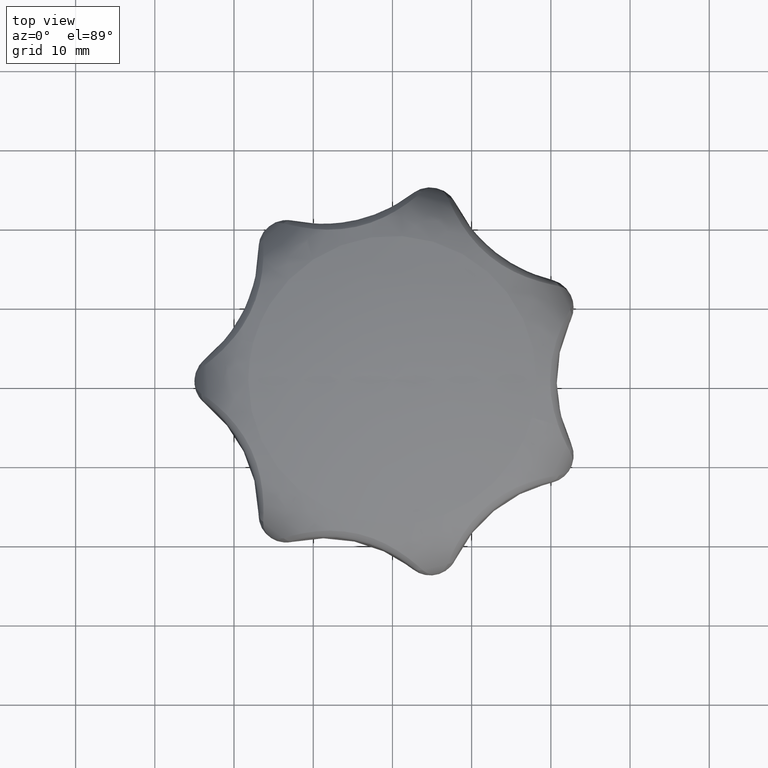
[diagram: clean part render]
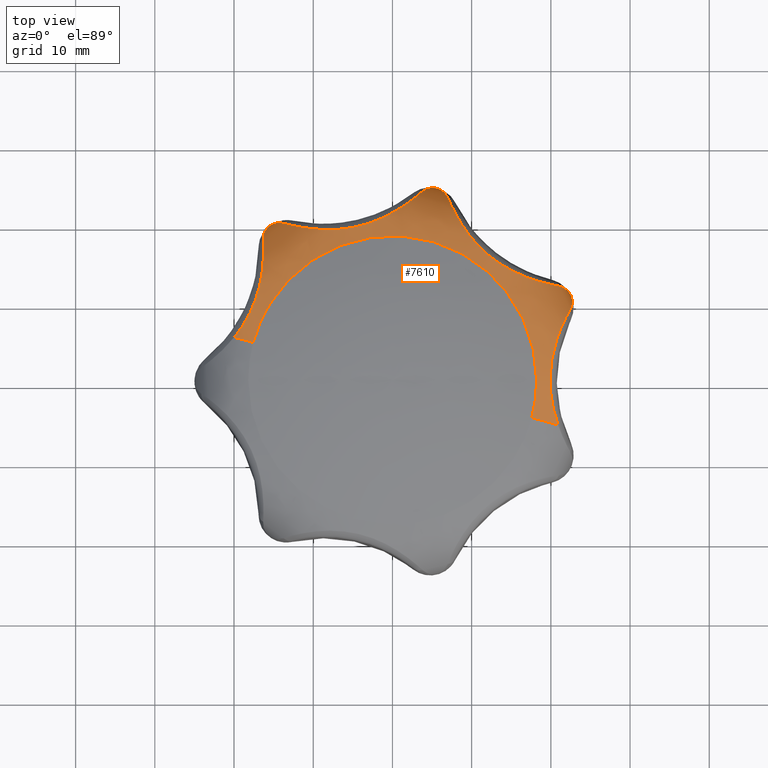
[diagram: same view with one face highlighted and labeled with its STEP entity id]
A machine part, top view. The second image highlights one B-rep face of the part: STEP entity #7610.
In plain terms, the highlighted face is a freeform B-spline surface patch.
Its self-contained STEP definition (entity closure, byte-faithful):
#2683=CARTESIAN_POINT('',(-15.587244335688350,19.545787396947251,21.138975563360098));
#2684=VERTEX_POINT('',#2683);
#2765=CARTESIAN_POINT('',(5.563023274532569,24.373197756430201,21.138975563360098));
#2766=VERTEX_POINT('',#2765);
#3021=CARTESIAN_POINT('',(18.211198396118341,0.0,29.863114584089448));
#3022=VERTEX_POINT('',#3021);
#3043=CARTESIAN_POINT('',(17.580756814501768,-4.750236491730867,29.863114550777400));
#3044=VERTEX_POINT('',#3043);
#3072=CARTESIAN_POINT('',(17.580756814501768,-4.750236491730867,29.863114550777400));
#3073=CARTESIAN_POINT('',(17.828915368958061,-3.832022789808897,29.863114557332040));
#3074=CARTESIAN_POINT('',(18.125256296561648,-2.252730889695959,29.863114568486449));
#3075=CARTESIAN_POINT('',(18.211206972087901,-0.650787820530269,29.863114579604630));
#3076=CARTESIAN_POINT('',(18.211198396118341,0.0,29.863114584089448));
#3077=B_SPLINE_CURVE_WITH_KNOTS('',3,(#3072,#3073,#3074,#3075,#3076),.UNSPECIFIED.,.F.,.U.,(4,1,4),(4.380096E-010,2.853464919490515,4.805835677326216),.UNSPECIFIED.);
#3078=EDGE_CURVE('',#3044,#3022,#3077,.T.);
#3119=CARTESIAN_POINT('',(-17.580756814447270,4.750236491716143,29.863114550791721));
#3120=VERTEX_POINT('',#3119);
#3121=CARTESIAN_POINT('',(18.211198396118341,0.0,29.863114584089448));
#3122=CARTESIAN_POINT('',(18.211246268773522,0.887088973013643,29.863114583981929));
#3123=CARTESIAN_POINT('',(18.098767704938190,2.422409204360849,29.863114583692500));
#3124=CARTESIAN_POINT('',(17.563883481132638,5.068117704136888,29.863114582882549));
#3125=CARTESIAN_POINT('',(16.615917574800569,7.677496355093007,29.863114581699069));
#3126=CARTESIAN_POINT('',(15.078121228372421,10.346383472175450,29.863114579969299));
#3127=CARTESIAN_POINT('',(13.463933602955800,12.342147537510369,29.863114578251221));
#3128=CARTESIAN_POINT('',(11.901622556712059,13.822909016170939,29.863114576643301));
#3129=CARTESIAN_POINT('',(10.337075011271949,15.037862909114169,29.863114575065548));
#3130=CARTESIAN_POINT('',(8.239328925134714,16.326067259157021,29.863114572991432));
#3131=CARTESIAN_POINT('',(5.802341698422543,17.337247911315089,29.863114570640629));
#3132=CARTESIAN_POINT('',(3.379733048755765,17.933911368657739,29.863114568353801));
#3133=CARTESIAN_POINT('',(0.974066417538719,18.246418702300382,29.863114566116650));
#3134=CARTESIAN_POINT('',(-1.354634945421342,18.219909023606359,29.863114563990582));
#3135=CARTESIAN_POINT('',(-3.922206024335743,17.834252978931438,29.863114561690139));
#3136=CARTESIAN_POINT('',(-6.194125730956456,17.191931919480510,29.863114559691059));
#3137=CARTESIAN_POINT('',(-8.412174839684084,16.204395470808571,29.863114557784449));
#3138=CARTESIAN_POINT('',(-10.255929231670899,15.092874234653671,29.863114556231960));
#3139=CARTESIAN_POINT('',(-11.722365752489869,13.973166371329960,29.863114555028289));
#3140=CARTESIAN_POINT('',(-13.124652042923390,12.672911726011060,29.863114553903639));
#3141=CARTESIAN_POINT('',(-14.610942704587190,10.975509200865559,29.863114552751270));
#3142=CARTESIAN_POINT('',(-16.325907473141250,8.334035043916963,29.863114551503770));
#3143=CARTESIAN_POINT('',(-17.216165019022519,6.100772038438054,29.863114550960979));
#3144=CARTESIAN_POINT('',(-17.580756814447270,4.750236491716143,29.863114550791721));
#3145=B_SPLINE_CURVE_WITH_KNOTS('',3,(#3121,#3122,#3123,#3124,#3125,#3126,#3127,#3128,#3129,#3130,#3131,#3132,#3133,#3134,#3135,#3136,#3137,#3138,#3139,#3140,#3141,#3142,#3143,#3144),.UNSPECIFIED.,.F.,.U.,(4,1,1,1,1,1,1,1,1,1,1,1,1,1,1,1,1,1,1,1,1,4),(0.000000086531564,2.661262084402338,4.606027550086118,8.086135211401185,10.952120822601961,13.818102267037061,15.762871701757989,17.400576791528749,19.754778761703179,23.132561751846389,25.282021696390711,27.226729431589611,30.399812852384191,32.242202319795432,35.005847613275790,37.462399429621563,39.509530349670740,41.454308354472317,42.989653008291093,45.241483140817813,48.209849631855150,52.406421604238112),.UNSPECIFIED.);
#3146=EDGE_CURVE('',#3022,#3120,#3145,.T.);
#3185=CARTESIAN_POINT('',(6.979022579631600,23.130869970859099,24.933901547163000));
#3186=VERTEX_POINT('',#3185);
#3197=CARTESIAN_POINT('',(6.979022579631600,23.130869970859099,24.933901547163000));
#3198=CARTESIAN_POINT('',(6.909432498495636,23.301456104037630,24.625929795197870));
#3199=CARTESIAN_POINT('',(6.823284281170104,23.454712647212659,24.316818453214619));
#3200=CARTESIAN_POINT('',(6.625758653470102,23.728494397587038,23.694377153265211));
#3201=CARTESIAN_POINT('',(6.514315190052402,23.849000387741871,23.381062231544419));
#3202=CARTESIAN_POINT('',(6.331965434033092,24.005224823865579,22.906654012313432));
#3203=CARTESIAN_POINT('',(6.268635963520103,24.053197823294010,22.747778925636581));
#3204=CARTESIAN_POINT('',(6.137382306100458,24.140798615800470,22.428325067304620));
#3205=CARTESIAN_POINT('',(6.069326648534801,24.180487025437721,22.267448918424979));
#3206=CARTESIAN_POINT('',(5.929800506151916,24.250923951754562,21.945446703156140));
#3207=CARTESIAN_POINT('',(5.858359976096663,24.281682699383929,21.784370214593629));
#3208=CARTESIAN_POINT('',(5.749060137970578,24.321092216646019,21.542467511105450));
#3209=CARTESIAN_POINT('',(5.712270016169256,24.333106447814220,21.461785275783001));
#3210=CARTESIAN_POINT('',(5.656593025503534,24.349432185031031,21.340668351058529));
#3211=CARTESIAN_POINT('',(5.637954926859542,24.354590538650861,21.300286388605649));
#3212=CARTESIAN_POINT('',(5.600538292868120,24.364335556182450,21.219527501643501));
#3213=CARTESIAN_POINT('',(5.581559635789891,24.368966953645970,21.178887050275360));
#3214=CARTESIAN_POINT('',(5.563023274532569,24.373197756430201,21.138975563360098));
#3215=B_SPLINE_CURVE_WITH_KNOTS('',3,(#3197,#3198,#3199,#3200,#3201,#3202,#3203,#3204,#3205,#3206,#3207,#3208,#3209,#3210,#3211,#3212,#3213,#3214),.UNSPECIFIED.,.F.,.U.,(4,2,2,2,2,2,2,2,4),(0.0,0.250000000000001,0.500000000000003,0.625000000000002,0.750000000000001,0.875000000000000,0.937500000000000,0.968750000000000,1.0),.UNSPECIFIED.);
#3216=EDGE_CURVE('',#3186,#2766,#3215,.T.);
#3537=CARTESIAN_POINT('',(20.997952736183251,11.951146853061561,24.933900281562600));
#3538=VERTEX_POINT('',#3537);
#3606=CARTESIAN_POINT('',(20.997952736183251,11.951146853061561,24.933900281562600));
#3607=CARTESIAN_POINT('',(20.766383550143878,11.989214992864980,25.326194941423399));
#3608=CARTESIAN_POINT('',(20.503884433524419,12.035825238798269,25.690778648461659));
#3609=CARTESIAN_POINT('',(20.068325554020760,12.122698469293480,26.199263772483619));
#3610=CARTESIAN_POINT('',(19.916134873542180,12.154498036122170,26.362327185265681));
#3611=CARTESIAN_POINT('',(19.677662792097831,12.207134292864531,26.597430733513360));
#3612=CARTESIAN_POINT('',(19.596473036294238,12.225503706747149,26.674215276606240));
#3613=CARTESIAN_POINT('',(19.430734245800188,12.264018217656810,26.824628724440291));
#3614=CARTESIAN_POINT('',(19.346052154945419,12.284195983702521,26.898367958835610));
#3615=CARTESIAN_POINT('',(18.915826287561359,12.389501855894229,27.257930413781409));
#3616=CARTESIAN_POINT('',(18.554799660745061,12.486619006949400,27.512584783550039));
#3617=CARTESIAN_POINT('',(17.993141644441419,12.655592957199779,27.851393239480839));
#3618=CARTESIAN_POINT('',(17.802553809532348,12.715809091863070,27.957105157119742));
#3619=CARTESIAN_POINT('',(17.512167982552480,12.812556573320810,28.105433330940151));
#3620=CARTESIAN_POINT('',(17.414621595850949,12.845876949555640,28.153168431169970));
#3621=CARTESIAN_POINT('',(17.218114022538309,12.914766456795620,28.245312294754282));
#3622=CARTESIAN_POINT('',(17.119106820813439,12.950356915612520,28.289731861150749));
#3623=CARTESIAN_POINT('',(16.624718404416900,13.132704506272500,28.502105481756281));
#3624=CARTESIAN_POINT('',(16.228174229046960,13.293702906507040,28.642580826916241));
#3625=CARTESIAN_POINT('',(15.437776774878319,13.649299128052361,28.876058087580919));
#3626=CARTESIAN_POINT('',(15.043917064453741,13.843896053837881,28.969038429797980));
#3627=CARTESIAN_POINT('',(14.458139340941070,14.163942669846239,29.078634860027229));
#3628=CARTESIAN_POINT('',(14.263710194139239,14.275321293625760,29.110161538165940));
#3629=CARTESIAN_POINT('',(13.973635395956061,14.449845931023820,29.150405321591538));
#3630=CARTESIAN_POINT('',(13.877214804516230,14.509264354704960,29.162637348108071));
#3631=CARTESIAN_POINT('',(13.686235000495669,14.629818658036291,29.184672697375770));
#3632=CARTESIAN_POINT('',(13.591510008630239,14.691052759542750,29.194500238952401));
#3633=CARTESIAN_POINT('',(13.121726760096820,15.002029729072399,29.237942077744691));
#3634=CARTESIAN_POINT('',(12.394691805939161,15.530393820038601,29.271443801038931));
#3635=CARTESIAN_POINT('',(11.717305575729990,16.120881083323191,29.238694157407249));
#3636=CARTESIAN_POINT('',(11.309319728824599,16.509178922617011,29.195774822729518));
#3637=CARTESIAN_POINT('',(11.228490603639299,16.587799412011471,29.186054440427242));
#3638=CARTESIAN_POINT('',(11.068361408527760,16.746953338247451,29.164240202753572));
#3639=CARTESIAN_POINT('',(10.988987181315521,16.827564261102879,29.152133333143581));
#3640=CARTESIAN_POINT('',(10.753705169140860,17.071667106054480,29.112163905594151));
#3641=CARTESIAN_POINT('',(10.600878741976439,17.237164386266681,29.080714359354541));
#3642=CARTESIAN_POINT('',(10.377477522271610,17.489240733400969,29.025693313034541));
#3643=CARTESIAN_POINT('',(10.303923537538720,17.573977409280641,29.006023071524300));
#3644=CARTESIAN_POINT('',(10.159277028523441,17.744018467542190,28.964095221294770));
#3645=CARTESIAN_POINT('',(10.088131083590360,17.829380164625899,28.941827070047999));
#3646=CARTESIAN_POINT('',(9.878132021037775,18.086364393553819,28.870964119767368));
#3647=CARTESIAN_POINT('',(9.742715817957269,18.258886939150301,28.818316499403739));
#3648=CARTESIAN_POINT('',(9.349541363165251,18.779026281534911,28.642777683812561));
#3649=CARTESIAN_POINT('',(9.104829685116652,19.129233998640039,28.502390668295611));
#3650=CARTESIAN_POINT('',(8.761685406451095,19.655317724679239,28.249553063523450));
#3651=CARTESIAN_POINT('',(8.651298127668630,19.830803577546352,28.158207745215702));
#3652=CARTESIAN_POINT('',(8.491498609880487,20.093612165315449,28.009425906355581));
#3653=CARTESIAN_POINT('',(8.439296053984879,20.180985985136740,27.957949697560860));
#3654=CARTESIAN_POINT('',(8.337593892494910,20.354068264581720,27.851783191587590));
#3655=CARTESIAN_POINT('',(8.287997099428122,20.439935760668138,27.797004044855839));
#3656=CARTESIAN_POINT('',(8.046057939810142,20.865640606189441,27.514447948215299));
#3657=CARTESIAN_POINT('',(7.871781766052185,21.194619242247910,27.260785372063591));
#3658=CARTESIAN_POINT('',(7.635766145690689,21.665296602830640,26.834403293886052));
#3659=CARTESIAN_POINT('',(7.561340769847483,21.818383784776369,26.684610238246560));
#3660=CARTESIAN_POINT('',(7.455756749330162,22.041507050871690,26.447625849643899));
#3661=CARTESIAN_POINT('',(7.421683158675329,22.114563392525760,26.366815027715891));
#3662=CARTESIAN_POINT('',(7.356011157578441,22.257236536769181,26.202345979287131));
#3663=CARTESIAN_POINT('',(7.324358916238942,22.326966893425450,26.118568177804050));
#3664=CARTESIAN_POINT('',(7.171747884994042,22.667424779675049,25.691930181348980));
#3665=CARTESIAN_POINT('',(7.067612669439641,22.913706988024359,25.325962473927710));
#3666=CARTESIAN_POINT('',(6.979022579631610,23.130869970859099,24.933901547163000));
#3667=B_SPLINE_CURVE_WITH_KNOTS('',3,(#3606,#3607,#3608,#3609,#3610,#3611,#3612,#3613,#3614,#3615,#3616,#3617,#3618,#3619,#3620,#3621,#3622,#3623,#3624,#3625,#3626,#3627,#3628,#3629,#3630,#3631,#3632,#3633,#3634,#3635,#3636,#3637,#3638,#3639,#3640,#3641,#3642,#3643,#3644,#3645,#3646,#3647,#3648,#3649,#3650,#3651,#3652,#3653,#3654,#3655,#3656,#3657,#3658,#3659,#3660,#3661,#3662,#3663,#3664,#3665,#3666),.UNSPECIFIED.,.F.,.U.,(4,2,2,2,2,2,2,2,2,2,2,2,2,2,1,2,2,2,2,2,2,2,2,2,2,2,2,2,2,2,4),(0.0,0.062500000000001,0.093750000000001,0.109375000000002,0.125000000000002,0.187500000000004,0.218750000000005,0.234375000000005,0.250000000000005,0.312500000000004,0.375000000000004,0.406250000000004,0.421875000000004,0.437500000000004,0.500000000000004,0.562500000000004,0.578125000000004,0.593750000000004,0.625000000000005,0.640625000000005,0.656250000000004,0.687500000000004,0.750000000000004,0.781250000000004,0.796875000000004,0.812500000000004,0.875000000000002,0.906250000000001,0.921875000000001,0.937500000000000,1.0),.UNSPECIFIED.);
#3668=EDGE_CURVE('',#3538,#3186,#3667,.T.);
#3711=CARTESIAN_POINT('',(22.524221752267799,10.847094021947340,21.138975563360098));
#3712=VERTEX_POINT('',#3711);
#3713=CARTESIAN_POINT('',(22.524221752267799,10.847094021947340,21.138975563360098));
#3714=CARTESIAN_POINT('',(22.520010772467739,10.855837553576160,21.158835673111621));
#3715=CARTESIAN_POINT('',(22.515792306116619,10.864430384355330,21.179115534903080));
#3716=CARTESIAN_POINT('',(22.507154157545951,10.881692028463259,21.219510860829359));
#3717=CARTESIAN_POINT('',(22.502764895928109,10.890299083363510,21.239703018341171));
#3718=CARTESIAN_POINT('',(22.489400168984570,10.916020668322281,21.300277983059399));
#3719=CARTESIAN_POINT('',(22.480224660473020,10.933041804502571,21.340660900783970));
#3720=CARTESIAN_POINT('',(22.451921594546949,10.983684560021620,21.461780701375378));
#3721=CARTESIAN_POINT('',(22.432022458975290,11.016877944939861,21.542463411462109));
#3722=CARTESIAN_POINT('',(22.369280859324409,11.114665219780809,21.784367539558541));
#3723=CARTESIAN_POINT('',(22.323396521118909,11.177469657210150,21.945444255765299));
#3724=CARTESIAN_POINT('',(22.223678587316559,11.297822966276660,22.267446915957699));
#3725=CARTESIAN_POINT('',(22.169841590106319,11.355340555552459,22.428323160689899));
#3726=CARTESIAN_POINT('',(22.055230692042880,11.463809975171189,22.747777177183199));
#3727=CARTESIAN_POINT('',(21.994368435313412,11.514876501097030,22.906652313737830));
#3728=CARTESIAN_POINT('',(21.801484475436229,11.657890804508501,23.381060649072971));
#3729=CARTESIAN_POINT('',(21.659201431853020,11.739724913654531,23.694375603434299));
#3730=CARTESIAN_POINT('',(21.348330581537031,11.871375798040861,24.316816948170001));
#3731=CARTESIAN_POINT('',(21.179746808692030,11.921261252829220,24.625928299308210));
#3732=CARTESIAN_POINT('',(20.997952736183251,11.951146853061561,24.933900281562600));
#3733=B_SPLINE_CURVE_WITH_KNOTS('',3,(#3713,#3714,#3715,#3716,#3717,#3718,#3719,#3720,#3721,#3722,#3723,#3724,#3725,#3726,#3727,#3728,#3729,#3730,#3731,#3732),.UNSPECIFIED.,.F.,.U.,(4,2,2,2,2,2,2,2,2,4),(0.0,0.015625000000000,0.031250000000000,0.062500000000000,0.125000000000001,0.250000000000001,0.375000000000000,0.500000000000000,0.750000000000000,1.0),.UNSPECIFIED.);
#3734=EDGE_CURVE('',#3712,#3538,#3733,.T.);
#3799=CARTESIAN_POINT('',(-13.733092844730340,19.878280736296301,24.933902333208199));
#3800=VERTEX_POINT('',#3799);
#3811=CARTESIAN_POINT('',(-13.733092844730340,19.878280736296301,24.933902333208199));
#3812=CARTESIAN_POINT('',(-13.909850542861999,19.930232361163160,24.625930264046790));
#3813=CARTESIAN_POINT('',(-14.083383926783821,19.958432862553860,24.316818872976871));
#3814=CARTESIAN_POINT('',(-14.420590454886250,19.974701201299549,23.694377505598791));
#3815=CARTESIAN_POINT('',(-14.584289762630240,19.962705417468481,23.381062552986560));
#3816=CARTESIAN_POINT('',(-14.820124303661800,19.917542886733891,22.906654308600729));
#3817=CARTESIAN_POINT('',(-14.897116439606840,19.897940550011668,22.747779217064242));
#3818=CARTESIAN_POINT('',(-15.047440962392839,19.849940397994779,22.428325368122991));
#3819=CARTESIAN_POINT('',(-15.120902709178770,19.821477590856180,22.267449229124690));
#3820=CARTESIAN_POINT('',(-15.262965932764599,19.756308130394299,21.945447121393489));
#3821=CARTESIAN_POINT('',(-15.331556675409381,19.719631321887942,21.784370688241129));
#3822=CARTESIAN_POINT('',(-15.430516424477711,19.658748041976772,21.542468432885741));
#3823=CARTESIAN_POINT('',(-15.462848064803829,19.637474898020798,21.461786346842221));
#3824=CARTESIAN_POINT('',(-15.510327683435920,19.604122516771731,21.340670375726049));
#3825=CARTESIAN_POINT('',(-15.525981846057880,19.592766416652900,21.300288729884201));
#3826=CARTESIAN_POINT('',(-15.549195942550110,19.575380667323699,21.239721514504829));
#3827=CARTESIAN_POINT('',(-15.556889217302681,19.569527038572360,21.219531932594329));
#3828=CARTESIAN_POINT('',(-15.572195457450841,19.557695680753209,21.179157384501440));
#3829=CARTESIAN_POINT('',(-15.579864758799079,19.551672413948751,21.158963419317310));
#3830=CARTESIAN_POINT('',(-15.587244335688350,19.545787396947251,21.138975563360098));
#3831=B_SPLINE_CURVE_WITH_KNOTS('',3,(#3811,#3812,#3813,#3814,#3815,#3816,#3817,#3818,#3819,#3820,#3821,#3822,#3823,#3824,#3825,#3826,#3827,#3828,#3829,#3830),.UNSPECIFIED.,.F.,.U.,(4,2,2,2,2,2,2,2,2,4),(0.0,0.249999999999999,0.499999999999998,0.624999999999998,0.749999999999999,0.875000000000000,0.937499999999999,0.968749999999999,0.984375000000000,1.0),.UNSPECIFIED.);
#3832=EDGE_CURVE('',#3800,#2684,#3831,.T.);
#4153=CARTESIAN_POINT('',(3.748227333012965,23.868278361227251,24.933900733064402));
#4154=VERTEX_POINT('',#4153);
#4166=CARTESIAN_POINT('',(3.748227333012965,23.868278361227251,24.933900733064402));
#4167=CARTESIAN_POINT('',(3.574083709226489,23.710965267003271,25.326195484764089));
#4168=CARTESIAN_POINT('',(3.373976792279787,23.534796171263832,25.690779217971439));
#4169=CARTESIAN_POINT('',(3.034490015610307,23.248427070774419,26.199264331242240));
#4170=CARTESIAN_POINT('',(2.914738765841767,23.149266301639120,26.362327739995621));
#4171=CARTESIAN_POINT('',(2.724901157472717,22.995639476378368,26.597431281575691));
#4172=CARTESIAN_POINT('',(2.659918381685292,22.943615907021929,26.674215822342020));
#4173=CARTESIAN_POINT('',(2.526470069067702,22.838049498837041,26.824629265323331));
#4174=CARTESIAN_POINT('',(2.457896031427659,22.784423001324260,26.898368497161940));
#4175=CARTESIAN_POINT('',(2.107323120118795,22.513715990135129,27.257930939247501));
#4176=CARTESIAN_POINT('',(1.806297435290394,22.292005545635771,27.512585297733260));
#4177=CARTESIAN_POINT('',(1.324000209326038,21.958237141083639,27.851393735943262));
#4178=CARTESIAN_POINT('',(1.158091759407010,21.846773711283209,27.957105647544669));
#4179=CARTESIAN_POINT('',(0.901398918191055,21.680061989137251,28.105433812224231));
#4180=CARTESIAN_POINT('',(0.814528817573960,21.624572065032840,28.153168909393202));
#4181=CARTESIAN_POINT('',(0.638148355875056,21.513888157597471,28.245312766849150));
#4182=CARTESIAN_POINT('',(0.548592629916637,21.458671495770790,28.289732330261732));
#4183=CARTESIAN_POINT('',(0.097781386195969,21.185834917689721,28.502105936200302));
#4184=CARTESIAN_POINT('',(-0.275333496802101,20.976185049382881,28.642581270099431));
#4185=CARTESIAN_POINT('',(-1.046154599650408,20.579938040075550,28.876058510438721));
#4186=CARTESIAN_POINT('',(-1.443864129404509,20.393335312280541,28.969038843592539));
#4187=CARTESIAN_POINT('',(-2.059313105966095,20.134901642158759,29.078635263031881));
#4188=CARTESIAN_POINT('',(-2.267617017003248,20.052334248779001,29.110161938043571));
#4189=CARTESIAN_POINT('',(-2.584924560465173,19.934358969445480,29.150405717645398));
#4190=CARTESIAN_POINT('',(-2.691497014071461,19.896021095993660,29.162637743143790));
#4191=CARTESIAN_POINT('',(-2.904824131592531,19.821871450212790,29.184673090652140));
#4192=CARTESIAN_POINT('',(-3.011758950151325,19.785991306735269,29.194500631493160));
#4193=CARTESIAN_POINT('',(-3.547795618556120,19.612590940396821,29.237942467368988));
#4194=CARTESIAN_POINT('',(-4.414186223358967,19.373601818559010,29.271443880974740));
#4195=CARTESIAN_POINT('',(-5.298191172508072,19.212162661393570,29.238694559082941));
#4196=CARTESIAN_POINT('',(-5.856149678252679,19.135286231510051,29.195775235865099));
#4197=CARTESIAN_POINT('',(-5.968013790344022,19.121110551540241,29.186054856058590));
#4198=CARTESIAN_POINT('',(-6.192284266615901,19.095147358551309,29.164240623796740));
#4199=CARTESIAN_POINT('',(-6.304797447765986,19.083350178800160,29.152133757152530));
#4200=CARTESIAN_POINT('',(-6.642340684091930,19.051594933721130,29.112164338590340));
#4201=CARTESIAN_POINT('',(-6.867017394679920,19.035296291721320,29.080714799067859));
#4202=CARTESIAN_POINT('',(-7.203387012638381,19.017801222714141,29.025693763929951));
#4203=CARTESIAN_POINT('',(-7.315496977337847,19.013126857123769,29.006023526241862));
#4204=CARTESIAN_POINT('',(-7.538626063588214,19.006056532589220,28.964095683628319));
#4205=CARTESIAN_POINT('',(-7.649723302017311,19.003654542858332,28.941827536324549));
#4206=CARTESIAN_POINT('',(-7.981573951939637,18.999697717540229,28.870964598267129));
#4207=CARTESIAN_POINT('',(-8.200888141272703,19.001391119636882,28.818316986576519));
#4208=CARTESIAN_POINT('',(-8.852689747437413,19.018296544728500,28.642778198528429));
#4209=CARTESIAN_POINT('',(-9.279068421437716,19.045324203171450,28.502391203369239));
#4210=CARTESIAN_POINT('',(-9.904324228572163,19.105051061234409,28.249553632429730));
#4211=CARTESIAN_POINT('',(-10.110349945417489,19.128160457994849,28.158208325956689));
#4212=CARTESIAN_POINT('',(-10.415455357574009,19.167082649189389,28.009426505820709));
#4213=CARTESIAN_POINT('',(-10.516314729870061,19.180745737190421,27.957950301855469));
#4214=CARTESIAN_POINT('',(-10.715046179770420,19.209146829656110,27.851783806332680));
#4215=CARTESIAN_POINT('',(-10.813103193321499,19.223908007612181,27.797004664851698));
#4216=CARTESIAN_POINT('',(-11.296779277954130,19.300175006284469,27.514448594606460));
#4217=CARTESIAN_POINT('',(-11.662644577865850,19.369035249121421,27.260786039979180));
#4218=CARTESIAN_POINT('',(-12.177788331647189,19.477973368391311,26.834403995464161));
#4219=CARTESIAN_POINT('',(-12.343880187272170,19.515233572492939,26.684610951283030));
#4220=CARTESIAN_POINT('',(-12.584155563124780,19.571799756372322,26.447626580418738));
#4221=CARTESIAN_POINT('',(-12.662517857659051,19.590709839945461,26.366815761394520));
#4222=CARTESIAN_POINT('',(-12.815010055072140,19.628320662929351,26.202346720572130));
#4223=CARTESIAN_POINT('',(-12.889262302188230,19.647050115707248,26.118568922774621));
#4224=CARTESIAN_POINT('',(-13.250594464485900,19.740006053541340,25.691930944170199));
#4225=CARTESIAN_POINT('',(-13.508072931310410,19.812144330562290,25.325963249167771));
#4226=CARTESIAN_POINT('',(-13.733092844730340,19.878280736296301,24.933902333208209));
#4227=B_SPLINE_CURVE_WITH_KNOTS('',3,(#4166,#4167,#4168,#4169,#4170,#4171,#4172,#4173,#4174,#4175,#4176,#4177,#4178,#4179,#4180,#4181,#4182,#4183,#4184,#4185,#4186,#4187,#4188,#4189,#4190,#4191,#4192,#4193,#4194,#4195,#4196,#4197,#4198,#4199,#4200,#4201,#4202,#4203,#4204,#4205,#4206,#4207,#4208,#4209,#4210,#4211,#4212,#4213,#4214,#4215,#4216,#4217,#4218,#4219,#4220,#4221,#4222,#4223,#4224,#4225,#4226),.UNSPECIFIED.,.F.,.U.,(4,2,2,2,2,2,2,2,2,2,2,2,2,2,1,2,2,2,2,2,2,2,2,2,2,2,2,2,2,2,4),(0.0,0.062500000000000,0.093750000000000,0.109375000000000,0.125000000000000,0.187500000000000,0.218750000000000,0.234375000000000,0.250000000000000,0.312499999999999,0.374999999999999,0.406249999999999,0.421874999999999,0.437499999999999,0.499999999999999,0.562499999999999,0.578124999999999,0.593749999999999,0.624999999999998,0.640624999999998,0.656249999999998,0.687499999999998,0.749999999999998,0.781249999999998,0.796874999999998,0.812499999999998,0.874999999999998,0.906249999999998,0.921874999999999,0.937499999999999,1.0),.UNSPECIFIED.);
#4228=EDGE_CURVE('',#4154,#3800,#4227,.T.);
#4259=CARTESIAN_POINT('',(5.563023274532569,24.373197756430201,21.138975563360098));
#4260=CARTESIAN_POINT('',(5.544486932736412,24.377428620527098,21.178887039088170));
#4261=CARTESIAN_POINT('',(5.525378270930028,24.381490404450631,21.219527478608480));
#4262=CARTESIAN_POINT('',(5.487438854525998,24.388944912824279,21.300286342432528));
#4263=CARTESIAN_POINT('',(5.468408387473145,24.392384163259720,21.340668293317929));
#4264=CARTESIAN_POINT('',(5.411161696426125,24.401832519251052,21.461785183339749));
#4265=CARTESIAN_POINT('',(5.372802173325291,24.406970704657169,21.542467395596240));
#4266=CARTESIAN_POINT('',(5.257227305886096,24.418887375116729,21.784370030055879));
#4267=CARTESIAN_POINT('',(5.179515914017951,24.422171585506149,21.945446472825239));
#4268=CARTESIAN_POINT('',(5.023245810715480,24.419248237828249,22.267448596760591));
#4269=CARTESIAN_POINT('',(4.944709648974973,24.413018465163280,22.428324699223730));
#4270=CARTESIAN_POINT('',(4.788445674172548,24.391041722854339,22.747778467055198));
#4271=CARTESIAN_POINT('',(4.710573109763429,24.375297182544649,22.906653509310871));
#4272=CARTESIAN_POINT('',(4.478498475620897,24.313662465166502,23.381061597475021));
#4273=CARTESIAN_POINT('',(4.325805832935681,24.253443865320250,23.694376434746211));
#4274=CARTESIAN_POINT('',(4.029052007510731,24.092478292040891,24.316817570268260));
#4275=CARTESIAN_POINT('',(3.884939651096366,23.991777291823372,24.625928832297380));
#4276=CARTESIAN_POINT('',(3.748227333012965,23.868278361227251,24.933900733064402));
#4277=B_SPLINE_CURVE_WITH_KNOTS('',3,(#4259,#4260,#4261,#4262,#4263,#4264,#4265,#4266,#4267,#4268,#4269,#4270,#4271,#4272,#4273,#4274,#4275,#4276),.UNSPECIFIED.,.F.,.U.,(4,2,2,2,2,2,2,2,4),(0.0,0.031250000000000,0.062499999999999,0.124999999999998,0.249999999999999,0.374999999999999,0.499999999999999,0.749999999999999,1.0),.UNSPECIFIED.);
#4278=EDGE_CURVE('',#2766,#4154,#4277,.T.);
#4663=CARTESIAN_POINT('',(-16.323989128505250,17.812109902086849,24.933902505942150));
#4664=VERTEX_POINT('',#4663);
#4676=CARTESIAN_POINT('',(-19.997321005162831,5.403180590295925,28.805412024847620));
#4677=VERTEX_POINT('',#4676);
#4703=CARTESIAN_POINT('',(-16.323989128505250,17.812109902086849,24.933902505942150));
#4704=CARTESIAN_POINT('',(-16.309573952089529,17.577875459642030,25.326197062047200));
#4705=CARTESIAN_POINT('',(-16.296604024242399,17.311585880320671,25.690780689340990));
#4706=CARTESIAN_POINT('',(-16.284378185001081,16.867616091336270,26.199265706368500));
#4707=CARTESIAN_POINT('',(-16.281514856431119,16.712165025837461,26.362329081328710));
#4708=CARTESIAN_POINT('',(-16.279766381502078,16.467959190973531,26.597432569938700));
#4709=CARTESIAN_POINT('',(-16.279608815646711,16.384717427490550,26.674217092668400));
#4710=CARTESIAN_POINT('',(-16.280277337704170,16.214563720282410,26.824630498867300));
#4711=CARTESIAN_POINT('',(-16.281105667763612,16.127514787420100,26.898369711473510));
#4712=CARTESIAN_POINT('',(-16.288037045064510,15.684642697666680,27.257932062305368));
#4713=CARTESIAN_POINT('',(-16.302383293014199,15.311057076176789,27.512586344720440));
#4714=CARTESIAN_POINT('',(-16.342140066866989,14.725880644057760,27.851394667569600));
#4715=CARTESIAN_POINT('',(-16.358436681918619,14.526671858421610,27.957106540506270));
#4716=CARTESIAN_POINT('',(-16.388141589513811,14.222038222017749,28.105434647277502));
#4717=CARTESIAN_POINT('',(-16.398920445826999,14.119523030211340,28.153169725158421));
#4718=CARTESIAN_POINT('',(-16.422355710112491,13.912612925108640,28.245313544134319));
#4719=CARTESIAN_POINT('',(-16.435022672023020,13.808168402953280,28.289733088937080));
#4720=CARTESIAN_POINT('',(-16.502786683020631,13.285599104691959,28.502106603223819));
#4721=CARTESIAN_POINT('',(-16.571509162493669,12.863171555830650,28.642581866505811));
#4722=CARTESIAN_POINT('',(-16.742309921219231,12.013463333666961,28.876058973215610));
#4723=CARTESIAN_POINT('',(-16.844385896245019,11.586176589277940,28.969039243366900));
#4724=CARTESIAN_POINT('',(-17.026060518344298,10.943868434128561,29.078635574623021));
#4725=CARTESIAN_POINT('',(-17.091382108922161,10.729529948843039,29.110162221281708));
#4726=CARTESIAN_POINT('',(-17.196983359772570,10.407892537985340,29.150405959879169));
#4727=CARTESIAN_POINT('',(-17.233456449761860,10.300667561595800,29.162637972465770));
#4728=CARTESIAN_POINT('',(-17.308491221477372,10.087650150444810,29.184673294553171));
#4729=CARTESIAN_POINT('',(-17.347111773080300,9.981674236304915,29.194500822902910));
#4730=CARTESIAN_POINT('',(-17.545755346588660,9.454470520965554,29.237942597344329));
#4731=CARTESIAN_POINT('',(-17.899091837592721,8.628091752450624,29.271444229240579));
#4732=CARTESIAN_POINT('',(-18.324041822910491,7.836293234512745,29.238694513591440));
#4733=CARTESIAN_POINT('',(-18.611818884649210,7.352132056784456,29.195775138574451));
#4734=CARTESIAN_POINT('',(-18.670482031993611,7.255834784230150,29.186054748439119));
#4735=CARTESIAN_POINT('',(-18.790013558994278,7.064305287752450,29.164240495543780));
#4736=CARTESIAN_POINT('',(-18.850940979673631,6.968983524622515,29.152133618708380));
#4737=CARTESIAN_POINT('',(-19.036568518971102,6.685282531756051,29.112164168201179));
#4738=CARTESIAN_POINT('',(-19.163909380445311,6.499461175323744,29.080714607248179));
#4739=CARTESIAN_POINT('',(-19.359954232156880,6.225568832614536,29.025693539597039));
#4740=CARTESIAN_POINT('',(-19.426199093155031,6.135003316489063,29.006023290785649));
#4741=CARTESIAN_POINT('',(-19.559790017175199,5.956145700865430,28.964095425052921));
#4742=CARTESIAN_POINT('',(-19.627180069147311,5.867788768441782,28.941827266078722));
#4743=CARTESIAN_POINT('',(-19.794725673469369,5.652476255071687,28.883573666129909));
#4744=CARTESIAN_POINT('',(-19.895510642322009,5.526727712064511,28.846035948594981));
#4745=CARTESIAN_POINT('',(-19.997321005162831,5.403180590295925,28.805412024847620));
#4746=B_SPLINE_CURVE_WITH_KNOTS('',3,(#4703,#4704,#4705,#4706,#4707,#4708,#4709,#4710,#4711,#4712,#4713,#4714,#4715,#4716,#4717,#4718,#4719,#4720,#4721,#4722,#4723,#4724,#4725,#4726,#4727,#4728,#4729,#4730,#4731,#4732,#4733,#4734,#4735,#4736,#4737,#4738,#4739,#4740,#4741,#4742,#4743,#4744,#4745),.UNSPECIFIED.,.F.,.U.,(4,2,2,2,2,2,2,2,2,2,2,2,2,2,1,2,2,2,2,2,2,4),(0.0,0.062500000000001,0.093750000000002,0.109375000000002,0.125000000000001,0.187500000000003,0.218750000000003,0.234375000000004,0.250000000000004,0.312500000000005,0.375000000000006,0.406250000000006,0.421875000000007,0.437500000000007,0.500000000000006,0.562500000000005,0.578125000000005,0.593750000000005,0.625000000000004,0.640625000000004,0.656250000000004,0.679159051927495),.UNSPECIFIED.);
#4747=EDGE_CURVE('',#4664,#4677,#4746,.T.);
#4784=CARTESIAN_POINT('',(-15.587244335688350,19.545787396947251,21.138975563360098));
#4785=CARTESIAN_POINT('',(-15.594624026511450,19.539902521848589,21.158963420591238));
#4786=CARTESIAN_POINT('',(-15.602202857818909,19.533765808183151,21.179157387070461));
#4787=CARTESIAN_POINT('',(-15.617143538170181,19.521476050880558,21.219531937730931));
#4788=CARTESIAN_POINT('',(-15.624562319168160,19.515278216842312,21.239721520924839));
#4789=CARTESIAN_POINT('',(-15.646677794660180,19.496514837314400,21.300288740153249));
#4790=CARTESIAN_POINT('',(-15.661232553023030,19.483780125809140,21.340670388557221));
#4791=CARTESIAN_POINT('',(-15.704313930984171,19.444912518953110,21.461786367387440));
#4792=CARTESIAN_POINT('',(-15.732248180523360,19.418125217111459,21.542468458546189));
#4793=CARTESIAN_POINT('',(-15.813625607832620,19.335194390101389,21.784370729173570));
#4794=CARTESIAN_POINT('',(-15.864645729734031,19.276484711135140,21.945447172409011));
#4795=CARTESIAN_POINT('',(-15.959793299242630,19.152484862924720,22.267449300152869));
#4796=CARTESIAN_POINT('',(-16.003889261981548,19.087198517244950,22.428325449986708));
#4797=CARTESIAN_POINT('',(-16.084136304448069,18.951323964454140,22.747779319881641));
#4798=CARTESIAN_POINT('',(-16.120379531880619,18.880624102723289,22.906654421663749));
#4799=CARTESIAN_POINT('',(-16.216887865303111,18.660752004146339,23.381062696162068));
#4800=CARTESIAN_POINT('',(-16.265009410366069,18.503826270694450,23.694377668017871));
#4801=CARTESIAN_POINT('',(-16.324184455219189,18.171454120553690,24.316819072531342));
#4802=CARTESIAN_POINT('',(-16.335305802906099,17.995996359989391,24.625930469938400));
#4803=CARTESIAN_POINT('',(-16.323989128505250,17.812109902086849,24.933902505942150));
#4804=B_SPLINE_CURVE_WITH_KNOTS('',3,(#4784,#4785,#4786,#4787,#4788,#4789,#4790,#4791,#4792,#4793,#4794,#4795,#4796,#4797,#4798,#4799,#4800,#4801,#4802,#4803),.UNSPECIFIED.,.F.,.U.,(4,2,2,2,2,2,2,2,2,4),(0.0,0.015624999999999,0.031249999999999,0.062499999999999,0.124999999999999,0.249999999999999,0.375000000000000,0.500000000000001,0.750000000000000,1.0),.UNSPECIFIED.);
#4805=EDGE_CURVE('',#2684,#4664,#4804,.T.);
#7440=CARTESIAN_POINT('',(20.917794845663650,-5.651888223582866,28.130032971362869));
#7441=VERTEX_POINT('',#7440);
#7461=CARTESIAN_POINT('',(20.917794845663650,-5.651888223582866,28.130032971362869));
#7462=CARTESIAN_POINT('',(20.506846425316489,-5.540851923892688,28.475208855083551));
#7463=CARTESIAN_POINT('',(19.460309227333109,-5.258082573290599,29.200830062359469));
#7464=CARTESIAN_POINT('',(18.283635787181140,-4.940151031836108,29.678808990269442));
#7465=CARTESIAN_POINT('',(17.580756814501768,-4.750236491730867,29.863114550777400));
#7466=B_SPLINE_CURVE_WITH_KNOTS('',3,(#7461,#7462,#7463,#7464,#7465),.UNSPECIFIED.,.F.,.U.,(4,1,4),(3.673423E-009,1.644137788585423,3.897214021103411),.UNSPECIFIED.);
#7467=EDGE_CURVE('',#7441,#3044,#7466,.T.);
#7471=CARTESIAN_POINT('',(-19.997321005162831,5.403180590295925,28.805412024847620));
#7472=CARTESIAN_POINT('',(-19.249673347401249,5.201169765237169,29.281999418016952));
#7473=CARTESIAN_POINT('',(-18.431768224858558,4.980175708876404,29.639924633390660));
#7474=CARTESIAN_POINT('',(-17.580756814447270,4.750236491716143,29.863114550791721));
#7475=B_SPLINE_CURVE_WITH_KNOTS('',3,(#7471,#7472,#7473,#7474),.UNSPECIFIED.,.F.,.U.,(4,4),(1.955307E-009,2.727949413894930),.UNSPECIFIED.);
#7476=EDGE_CURVE('',#4677,#3120,#7475,.T.);
#7481=CARTESIAN_POINT('',(23.936339378199762,-7.190985596480704,20.592766949032598));
#7482=CARTESIAN_POINT('',(24.026901855867543,-6.855811358487451,20.592766949032601));
#7483=CARTESIAN_POINT('',(30.635235648995742,17.601815028922022,20.592766949032594));
#7484=CARTESIAN_POINT('',(6.516710310036863,24.118525338958886,20.592766949032605));
#7485=CARTESIAN_POINT('',(-17.601815028922022,30.635235648995742,20.592766949032594));
#7486=CARTESIAN_POINT('',(-24.210148822042537,6.177609261614744,20.592766949032594));
#7487=CARTESIAN_POINT('',(-24.300711299702808,5.842435023649300,20.592766949032601));
#7488=CARTESIAN_POINT('',(24.397157072235345,-7.329425035697181,28.503301051446595));
#7489=CARTESIAN_POINT('',(24.489463040896705,-6.987798089250401,28.503301051446599));
#7490=CARTESIAN_POINT('',(31.225019175413500,17.940681707084860,28.503301051446599));
#7491=CARTESIAN_POINT('',(6.642168734164325,24.582850441249178,28.503301051446609));
#7492=CARTESIAN_POINT('',(-17.940681707084856,31.225019175413500,28.503301051446599));
#7493=CARTESIAN_POINT('',(-24.676237841593821,6.296539379107264,28.503301051446609));
#7494=CARTESIAN_POINT('',(-24.768543810247529,5.954912432688832,28.503301051446613));
#7495=CARTESIAN_POINT('',(16.937341134271492,-5.088337619834777,29.981118083822537));
#7496=CARTESIAN_POINT('',(17.001423095760604,-4.851168505601645,29.981118083822530));
#7497=CARTESIAN_POINT('',(21.677476606486042,12.455035041770914,29.981118083822523));
#7498=CARTESIAN_POINT('',(4.611220782357564,17.066255824128486,29.981118083822537));
#7499=CARTESIAN_POINT('',(-12.455035041770913,21.677476606486042,29.981118083822523));
#7500=CARTESIAN_POINT('',(-17.131088552490926,4.371273059133625,29.981118083822530));
#7501=CARTESIAN_POINT('',(-17.195170513974720,4.134103944920171,29.981118083822533));
#7509=(BOUNDED_SURFACE()B_SPLINE_SURFACE(2,2,((#7481,#7488,#7495),(#7482,#7489,#7496),(#7483,#7490,#7497),(#7484,#7491,#7498),(#7485,#7492,#7499),(#7486,#7493,#7500),(#7487,#7494,#7501)),.UNSPECIFIED.,.F.,.F.,.U.)B_SPLINE_SURFACE_WITH_KNOTS((3,1,2,1,3),(3,3),(0.0,0.827877382240785,42.221746492532738,83.615615602824690,84.443492984995572),(0.0,13.593144020105690),.UNSPECIFIED.)GEOMETRIC_REPRESENTATION_ITEM()RATIONAL_B_SPLINE_SURFACE(((0.925317211399799,0.694848659572483,0.926376426953271),(0.919959597026919,0.690825465018617,0.921012679690607),(0.646721264021332,0.485642542779942,0.647461569306021),(0.914601982654039,0.686802270464751,0.915648932427942),(0.646721264021332,0.485642542779942,0.647461569306021),(0.919959597026467,0.690825465018277,0.921012679690154),(0.925317211398895,0.694848659571803,0.926376426952365)))REPRESENTATION_ITEM('')SURFACE());
#7510=ORIENTED_EDGE('',*,*,#4747,.T.);
#7511=ORIENTED_EDGE('',*,*,#7476,.T.);
#7512=ORIENTED_EDGE('',*,*,#3146,.F.);
#7513=ORIENTED_EDGE('',*,*,#3078,.F.);
#7514=ORIENTED_EDGE('',*,*,#7467,.F.);
#7515=CARTESIAN_POINT('',(19.889992222345651,0.0,29.254883430634742));
#7516=VERTEX_POINT('',#7515);
#7517=CARTESIAN_POINT('',(20.917794845663650,-5.651888223582866,28.130032971362869));
#7518=CARTESIAN_POINT('',(20.900702320568030,-5.604139893951714,28.153508282365010));
#7519=CARTESIAN_POINT('',(20.883707608006858,-5.556087932104139,28.176575792371029));
#7520=CARTESIAN_POINT('',(20.832488631956419,-5.409438590479232,28.245312741665501));
#7521=CARTESIAN_POINT('',(20.798584365311051,-5.309841343162459,28.289732322284070));
#7522=CARTESIAN_POINT('',(20.632903182065640,-4.809620992423050,28.502106011322521));
#7523=CARTESIAN_POINT('',(20.511535445351189,-4.399209358961292,28.642581405297680));
#7524=CARTESIAN_POINT('',(20.296746811080180,-3.559541013556304,28.876058753109000));
#7525=CARTESIAN_POINT('',(20.203321203317248,-3.130279831519833,28.969039133673810));
#7526=CARTESIAN_POINT('',(20.088317147731232,-2.472754463793815,29.078635613994621));
#7527=CARTESIAN_POINT('',(20.054171827007849,-2.251300164873557,29.110162307584499));
#7528=CARTESIAN_POINT('',(20.009761939238050,-1.915696169683180,29.150406112259439));
#7529=CARTESIAN_POINT('',(19.996099857368382,-1.803264721744184,29.162638144908492));
#7530=CARTESIAN_POINT('',(19.971279006270720,-1.578786293729229,29.184673506010750));
#7531=CARTESIAN_POINT('',(19.960093668301759,-1.466548461923896,29.194501053251368));
#7532=CARTESIAN_POINT('',(19.910320091269949,-0.905366092499577,29.237942919049321));
#7533=CARTESIAN_POINT('',(19.890103885704310,-0.453928871999449,29.254787564637368));
#7534=CARTESIAN_POINT('',(19.889992220994969,-0.002512826872287,29.254883416302480));
#7535=CARTESIAN_POINT('',(19.889992222345651,0.0,29.254883430634742));
#7536=B_SPLINE_CURVE_WITH_KNOTS('',3,(#7517,#7518,#7519,#7520,#7521,#7522,#7523,#7524,#7525,#7526,#7527,#7528,#7529,#7530,#7531,#7532,#7533,#7534,#7535),.UNSPECIFIED.,.F.,.U.,(4,2,2,2,2,2,2,2,1,4),(0.226688312695903,0.234374999999999,0.249999999999999,0.312499999999998,0.374999999999998,0.406249999999998,0.421874999999998,0.437499999999998,0.499999999999997,0.500349856526699),.UNSPECIFIED.);
#7537=EDGE_CURVE('',#7441,#7516,#7536,.T.);
#7538=ORIENTED_EDGE('',*,*,#7537,.T.);
#7539=CARTESIAN_POINT('',(22.435791997948499,8.965443313572720,24.933900006994701));
#7540=VERTEX_POINT('',#7539);
#7541=CARTESIAN_POINT('',(19.889992222345651,0.0,29.254883430634742));
#7542=CARTESIAN_POINT('',(19.889992613907321,0.446390290664605,29.254885922101160));
#7543=CARTESIAN_POINT('',(19.909651425446938,0.892759872145073,29.238502738279969));
#7544=CARTESIAN_POINT('',(19.958639648597970,1.451323307594175,29.195775533735780));
#7545=CARTESIAN_POINT('',(19.969711512927109,1.563537156592696,29.186055136932559));
#7546=CARTESIAN_POINT('',(19.994304195399302,1.787962094728275,29.164240869125159));
#7547=CARTESIAN_POINT('',(20.007839358470889,1.900279475553386,29.152133983675011));
#7548=CARTESIAN_POINT('',(20.051990792092528,2.236426045695561,29.112164509032400));
#7549=CARTESIAN_POINT('',(20.086096111446089,2.459096458972640,29.080714929484792));
#7550=CARTESIAN_POINT('',(20.143889036440221,2.790925650246694,29.025693829644560));
#7551=CARTESIAN_POINT('',(20.164278705644769,2.901264940186903,29.006023569999321));
#7552=CARTESIAN_POINT('',(20.207036589504419,3.120373026812185,28.964095683565571));
#7553=CARTESIAN_POINT('',(20.229416307893150,3.229219327210476,28.941827513743849));
#7554=CARTESIAN_POINT('',(20.299402476917319,3.553630291247687,28.870964506181870));
#7555=CARTESIAN_POINT('',(20.349855468092869,3.767069016367834,28.818316845559419));
#7556=CARTESIAN_POINT('',(20.511376685048958,4.398766838393853,28.642777901752169));
#7557=CARTESIAN_POINT('',(20.632604980612818,4.808441125698985,28.502390790962082));
#7558=CARTESIAN_POINT('',(20.829967012160019,5.404730042241814,28.249553022062489));
#7559=CARTESIAN_POINT('',(20.898342091147931,5.600447957575677,28.158207645484040));
#7560=CARTESIAN_POINT('',(21.004180835091990,5.889242764014697,28.009425712698111));
#7561=CARTESIAN_POINT('',(21.039944701434830,5.984533052917905,27.957949477445950));
#7562=CARTESIAN_POINT('',(21.111855666512941,6.171962049577963,27.851782914636271));
#7563=CARTESIAN_POINT('',(21.148066508560351,6.264275896235265,27.797003738910259));
#7564=CARTESIAN_POINT('',(21.330049483796820,6.718854198450364,27.514447494192730));
#7565=CARTESIAN_POINT('',(21.478596015913968,7.060223636233264,27.260784789807520));
#7566=CARTESIAN_POINT('',(21.699433195291078,7.538210626445123,26.834402498590300));
#7567=CARTESIAN_POINT('',(21.772718153818989,7.691847028412258,26.684609368459348));
#7568=CARTESIAN_POINT('',(21.881332449540469,7.913511023145499,26.447624861720961));
#7569=CARTESIAN_POINT('',(21.917205675803871,7.985700702410010,26.366814011724539));
#7570=CARTESIAN_POINT('',(21.987806240375448,8.126000376450792,26.202344898956870));
#7571=CARTESIAN_POINT('',(22.022588793948039,8.194223253822717,26.118567065207671));
#7572=CARTESIAN_POINT('',(22.193618138435429,8.525811341973272,25.691928906868139));
#7573=CARTESIAN_POINT('',(22.321242124292588,8.760781937076413,25.325961068277191));
#7574=CARTESIAN_POINT('',(22.435791997948499,8.965443313572720,24.933900006994701));
#7575=B_SPLINE_CURVE_WITH_KNOTS('',3,(#7541,#7542,#7543,#7544,#7545,#7546,#7547,#7548,#7549,#7550,#7551,#7552,#7553,#7554,#7555,#7556,#7557,#7558,#7559,#7560,#7561,#7562,#7563,#7564,#7565,#7566,#7567,#7568,#7569,#7570,#7571,#7572,#7573,#7574),.UNSPECIFIED.,.F.,.U.,(4,2,2,2,2,2,2,2,2,2,2,2,2,2,2,2,4),(0.500349856526700,0.562499999999997,0.578124999999997,0.593749999999997,0.624999999999997,0.640624999999997,0.656249999999997,0.687499999999997,0.749999999999997,0.781249999999997,0.796874999999997,0.812499999999998,0.874999999999998,0.906249999999998,0.921874999999998,0.937499999999998,1.0),.UNSPECIFIED.);
#7576=EDGE_CURVE('',#7516,#7540,#7575,.T.);
#7577=ORIENTED_EDGE('',*,*,#7576,.T.);
#7578=CARTESIAN_POINT('',(22.435791997948499,8.965443313572720,24.933900006994701));
#7579=CARTESIAN_POINT('',(22.525773239702939,9.126209013472758,24.625928045452270));
#7580=CARTESIAN_POINT('',(22.591881482824832,9.289116188268720,24.316816715399309));
#7581=CARTESIAN_POINT('',(22.682777486719459,9.614247789920935,23.694375414014171));
#7582=CARTESIAN_POINT('',(22.707509036597600,9.776511883932281,23.381060481911909));
#7583=CARTESIAN_POINT('',(22.715957147591940,10.016482592589790,22.906652181114900));
#7584=CARTESIAN_POINT('',(22.713978731753681,10.095906077800890,22.747777056264599));
#7585=CARTESIAN_POINT('',(22.700632663203269,10.253142060131680,22.428323063614211));
#7586=CARTESIAN_POINT('',(22.689230426887271,10.331095148150631,22.267446831107861));
#7587=CARTESIAN_POINT('',(22.657307551160379,10.484096825831831,21.945444195012438));
#7588=CARTESIAN_POINT('',(22.636813490163028,10.559128570646021,21.784367490886009));
#7589=CARTESIAN_POINT('',(22.599479081422029,10.669151294789090,21.542463380997141));
#7590=CARTESIAN_POINT('',(22.585934360946290,10.705404801667960,21.461780676994142));
#7591=CARTESIAN_POINT('',(22.563986940702211,10.759108270131451,21.340660885554922));
#7592=CARTESIAN_POINT('',(22.556400119066488,10.776894476006269,21.300277970881300));
#7593=CARTESIAN_POINT('',(22.544622948953659,10.803380585646620,21.239703010739689));
#7594=CARTESIAN_POINT('',(22.540630343605830,10.812178659337460,21.219510854753540));
#7595=CARTESIAN_POINT('',(22.532520446942200,10.829694694545010,21.179115531878281));
#7596=CARTESIAN_POINT('',(22.528432473377151,10.838350366535799,21.158835671644368));
#7597=CARTESIAN_POINT('',(22.524221752267799,10.847094021947340,21.138975563360098));
#7598=B_SPLINE_CURVE_WITH_KNOTS('',3,(#7578,#7579,#7580,#7581,#7582,#7583,#7584,#7585,#7586,#7587,#7588,#7589,#7590,#7591,#7592,#7593,#7594,#7595,#7596,#7597),.UNSPECIFIED.,.F.,.U.,(4,2,2,2,2,2,2,2,2,4),(0.0,0.249999999999999,0.499999999999999,0.624999999999998,0.749999999999998,0.874999999999997,0.937499999999998,0.968749999999998,0.984374999999999,1.0),.UNSPECIFIED.);
#7599=EDGE_CURVE('',#7540,#3712,#7598,.T.);
#7600=ORIENTED_EDGE('',*,*,#7599,.T.);
#7601=ORIENTED_EDGE('',*,*,#3734,.T.);
#7602=ORIENTED_EDGE('',*,*,#3668,.T.);
#7603=ORIENTED_EDGE('',*,*,#3216,.T.);
#7604=ORIENTED_EDGE('',*,*,#4278,.T.);
#7605=ORIENTED_EDGE('',*,*,#4228,.T.);
#7606=ORIENTED_EDGE('',*,*,#3832,.T.);
#7607=ORIENTED_EDGE('',*,*,#4805,.T.);
#7608=EDGE_LOOP('',(#7510,#7511,#7512,#7513,#7514,#7538,#7577,#7600,#7601,#7602,#7603,#7604,#7605,#7606,#7607));
#7609=FACE_OUTER_BOUND('',#7608,.T.);
#7610=ADVANCED_FACE('',(#7609),#7509,.T.);